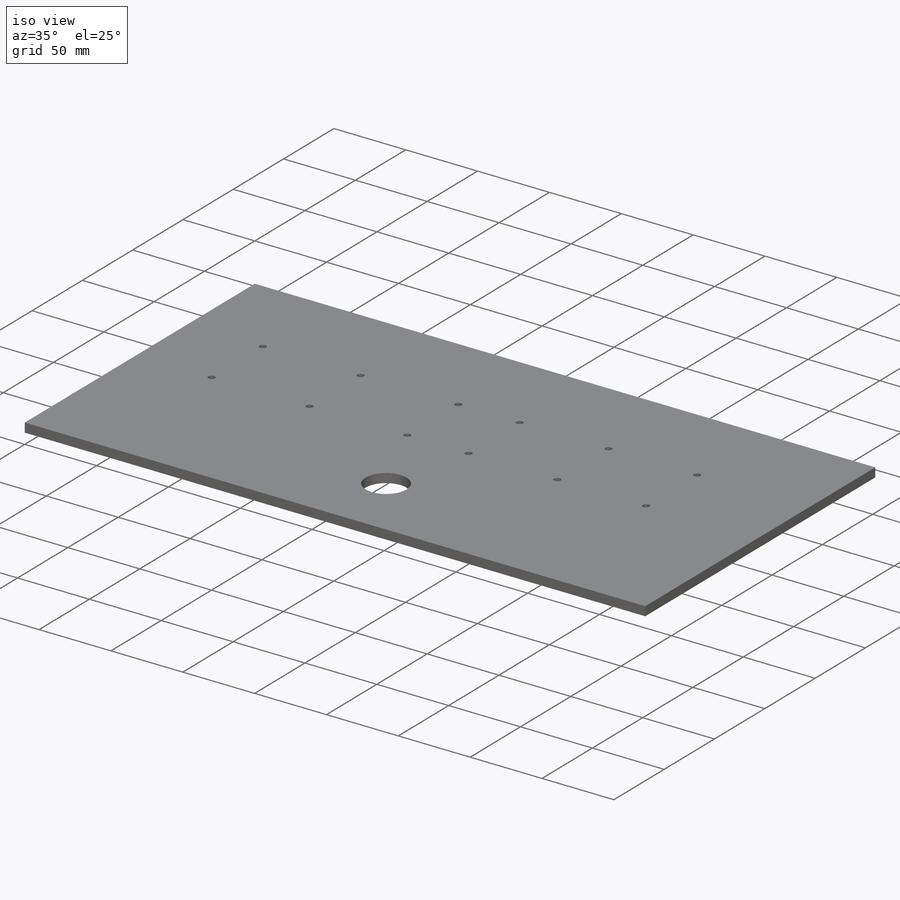
[diagram: iso view]
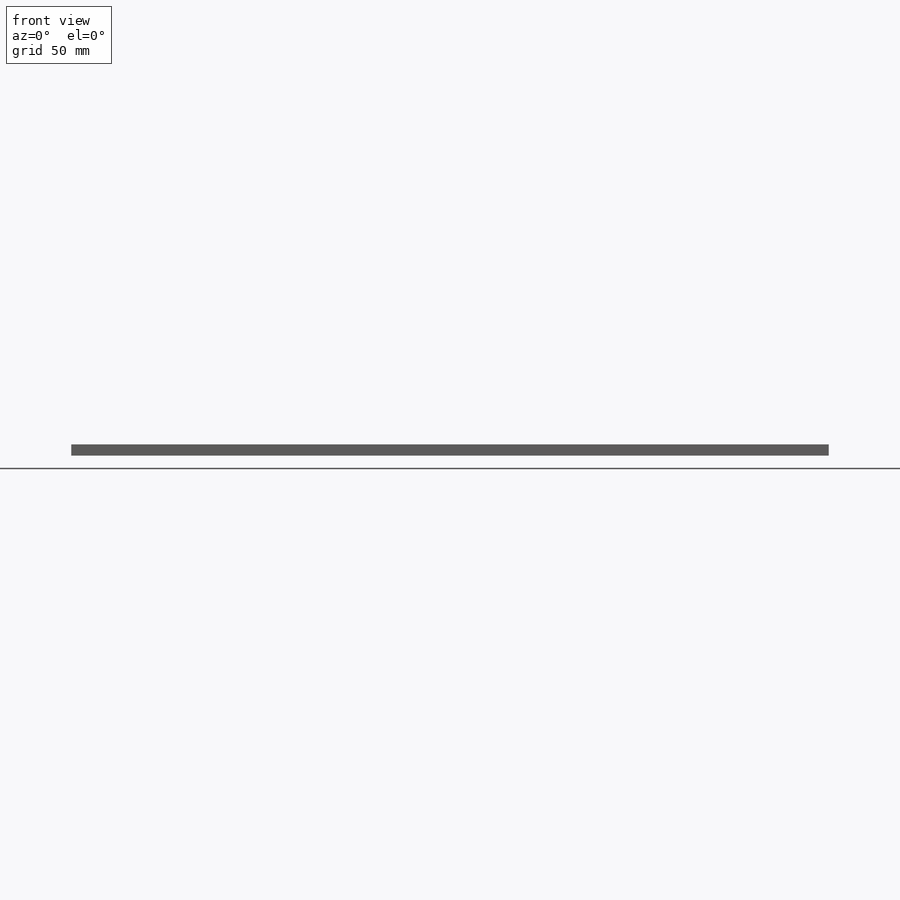
[diagram: front view]
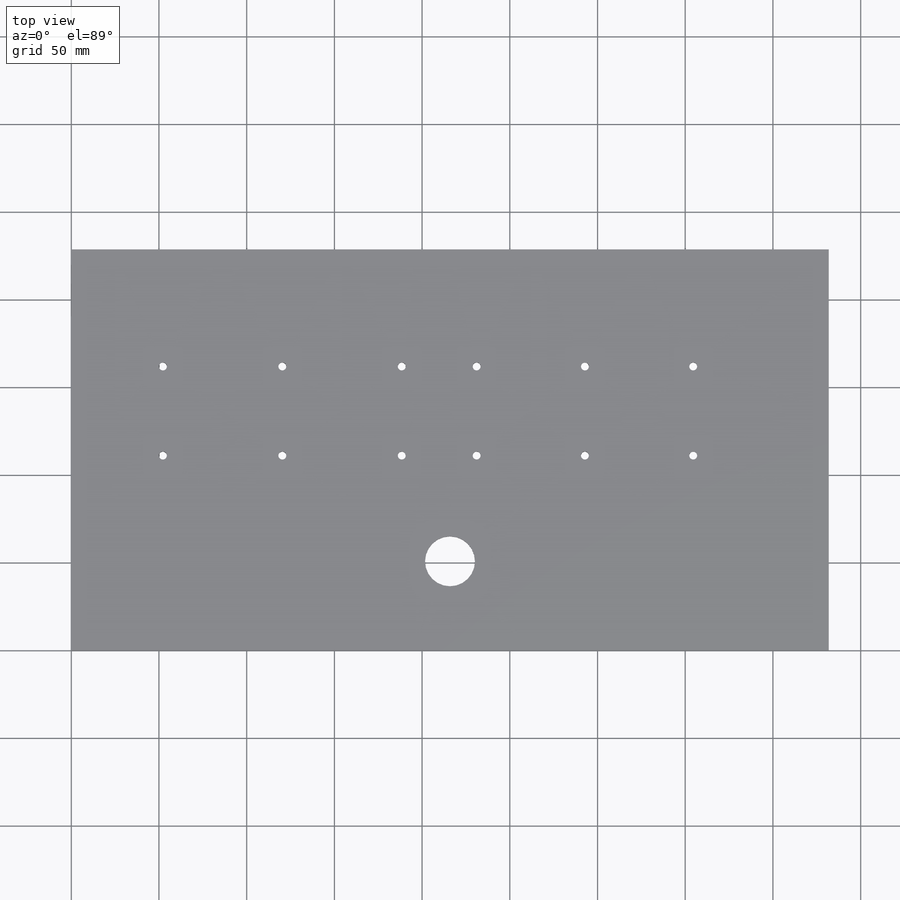
[diagram: top view]
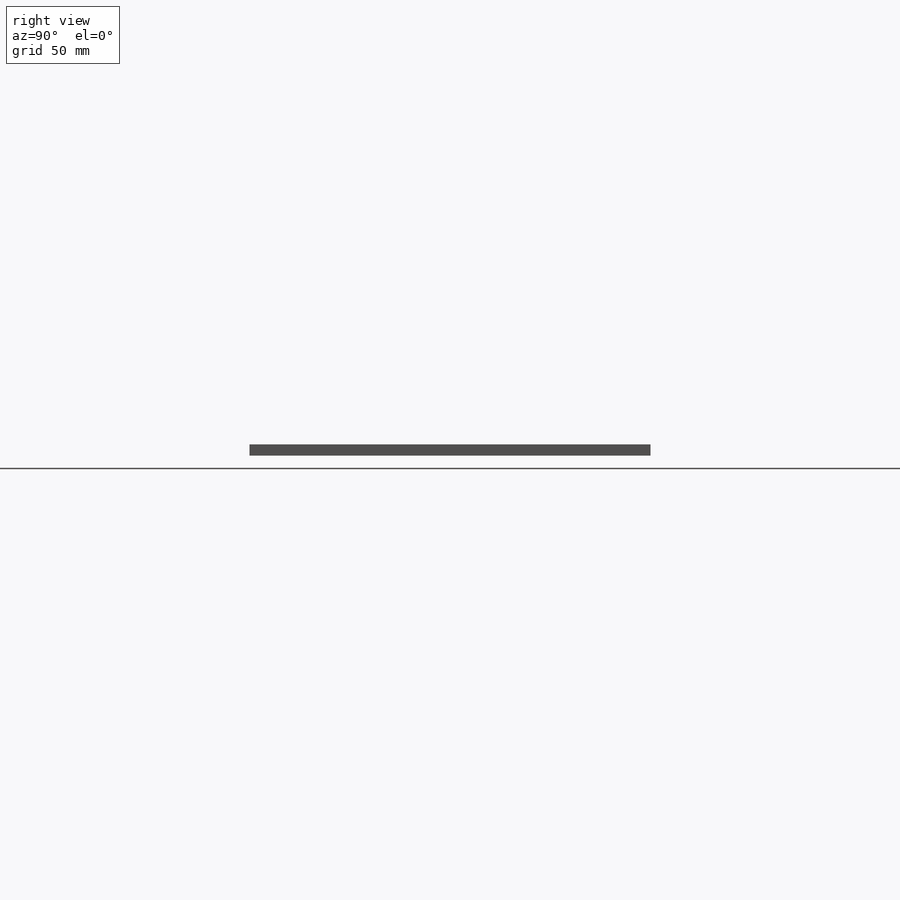
[diagram: right view]
SOLIDWORKS PART (.sldprt)
format: sldprt  version: not decoded by parser v0  size: 213,504 bytes
history: native  units: mm
features: sketch x5, cut_extrude x4, material x1, extrude x1 (+13 scaffold rows collapsed)
feature tree (24):
  scaffold x13  (default folders/planes/origin — collapsed)
  material  "Material <not specified>"
  sketch  "Sketch2"  dims[D1=431.8mm D2=228.6mm]
  extrude  "Boss-Extrude1"  Depth=6.35mm
  sketch  "Sketch4"  dims[c1.D1=28.448mm c1.D2=28.448mm c1.D3=28.448mm c2.D2=50.8mm c2.D3=215.9mm]
  cut_extrude  "Cut-Extrude1"  Depth=6.35mm
  sketch  "Sketch5"  dims[D1=~4.499352mm D2=~4.499352mm]
  cut_extrude  "Cut-Extrude2"  Depth=25.4mm
  sketch  "Sketch6"  dims[D1=~4.499352mm D2=~4.499352mm D3=~4.499321mm D4=~4.499321mm]
  cut_extrude  "Cut-Extrude3"  Depth=25.4mm
  sketch  "Sketch7"  dims[D1=~4.499352mm D2=~4.499321mm D3=~4.499321mm D4=~4.499321mm D5=~4.499321mm D6=~4.499321mm]
  cut_extrude  "Cut-Extrude4"  Depth=25.4mm
decode coverage: 10 of 10 modeling features carry decoded parameters
note: ~ marks probable driven/reference dimensions
note: suppression state not decoded; provenance and decode notes live in map.json
